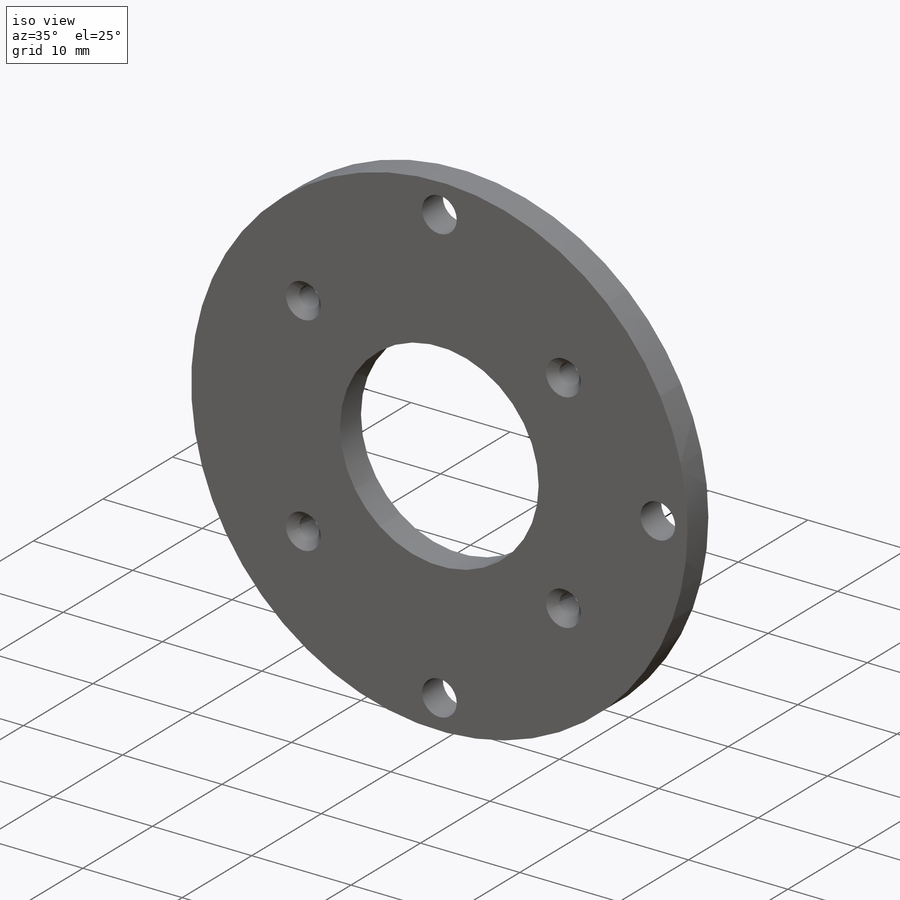
[diagram: iso view]
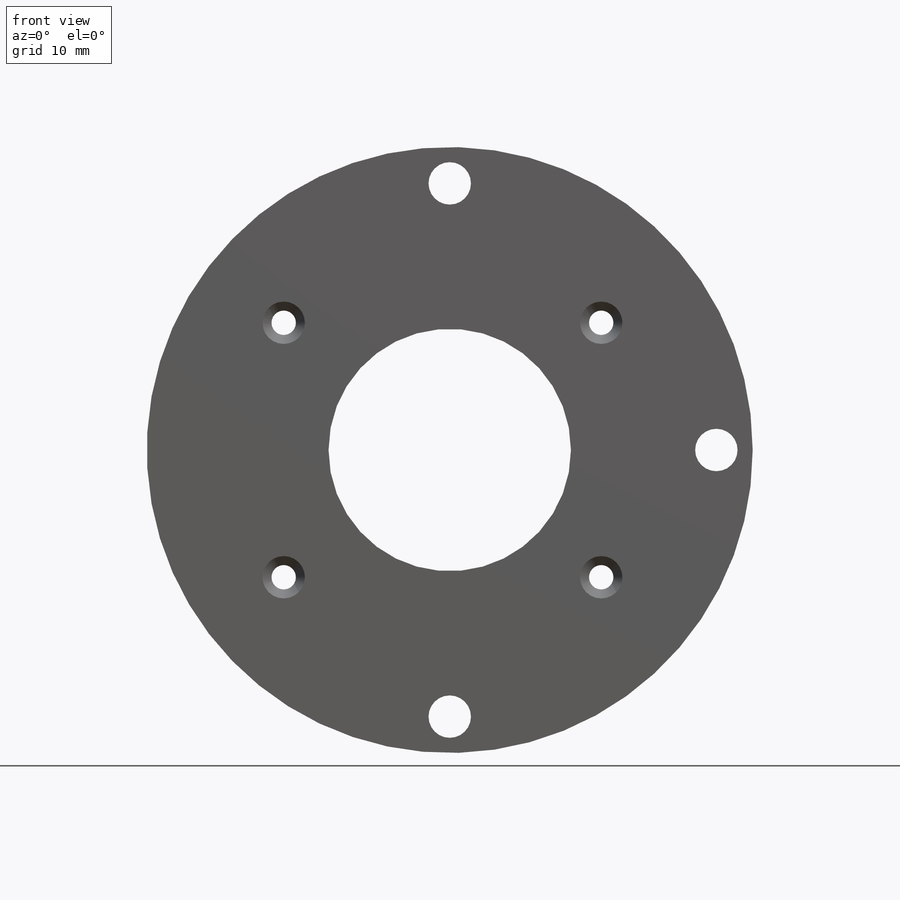
[diagram: front view]
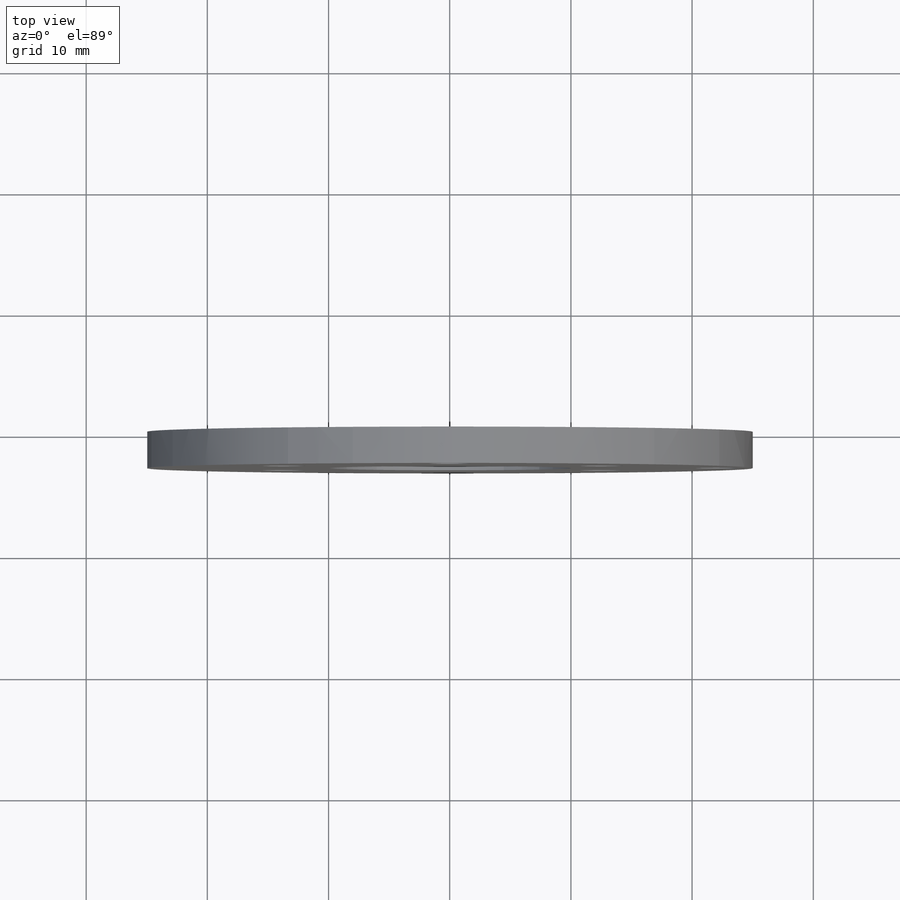
[diagram: top view]
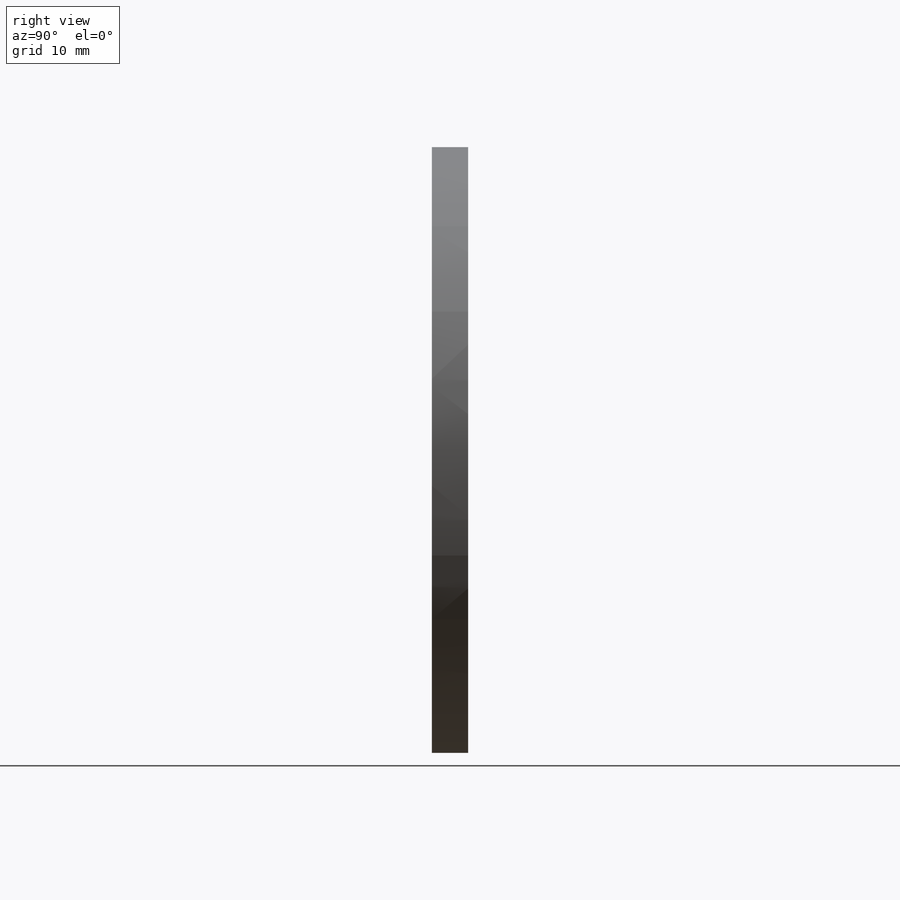
[diagram: right view]
SOLIDWORKS PART (.sldprt)
format: sldprt  version: not decoded by parser v0  size: 248,832 bytes
history: native  units: mm
features: revolve x17, hole x8, chamfer x4, plane x3, material x1, sketch x1 (+12 scaffold rows collapsed)
feature tree (46):
  scaffold x12  (default folders/planes/origin — collapsed)
  material  "Материал <не указан>"
  plane  "Спереди"
  plane  "Сверху"
  plane  "Справа"
  sketch  "Эскиз1"
  revolve  "Повернуть1"  Angle=360deg
  hole  "Отверстие1"  [1 undecoded]
  revolve  "Эскиз3"  [1 undecoded]
  revolve  "Эскиз2"  Диаметр=2.013mm Глубина=3mm  [1 undecoded]
  hole  "Отверстие2"  [1 undecoded]
  revolve  "Эскиз5"  [1 undecoded]
  revolve  "Эскиз4"  Диаметр=2.013mm Глубина=3mm  [1 undecoded]
  hole  "Отверстие3"  [1 undecoded]
  revolve  "Эскиз7"  [1 undecoded]
  revolve  "Эскиз6"  Диаметр=2.013mm Глубина=3mm  [1 undecoded]
  hole  "Отверстие4"  [1 undecoded]
  revolve  "Эскиз9"  [1 undecoded]
  revolve  "Эскиз8"  Диаметр=2.013mm Глубина=3mm  [1 undecoded]
  hole  "Отверстие5"  [1 undecoded]
  revolve  "Эскиз11"  [1 undecoded]
  revolve  "Эскиз10"  Диаметр=3.5mm Глубина=3mm  [1 undecoded]
  hole  "Отверстие6"  [1 undecoded]
  revolve  "Эскиз13"  [1 undecoded]
  revolve  "Эскиз12"  Диаметр=3.5mm Глубина=3mm  [1 undecoded]
  hole  "Отверстие7"  [1 undecoded]
  revolve  "Эскиз15"  [1 undecoded]
  revolve  "Эскиз14"  Диаметр=20mm Глубина=3mm  [1 undecoded]
  hole  "Отверстие8"  [1 undecoded]
  revolve  "Эскиз17"  [1 undecoded]
  revolve  "Эскиз16"  Диаметр=3.5mm Глубина=3mm  [1 undecoded]
  chamfer  "Фаска1"  Distance=0.7435mm Angle=49deg
  chamfer  "Фаска2"  Distance=0.7435mm Angle=49deg
  chamfer  "Фаска3"  Distance=0.7435mm Angle=49deg
  chamfer  "Фаска4"  Distance=0.7435mm Angle=49deg
decode coverage: 13 of 30 modeling features carry decoded parameters
note: 24 parameter values undecoded
summary: no parameter record found for 24 features
note: suppression state not decoded; provenance and decode notes live in map.json
